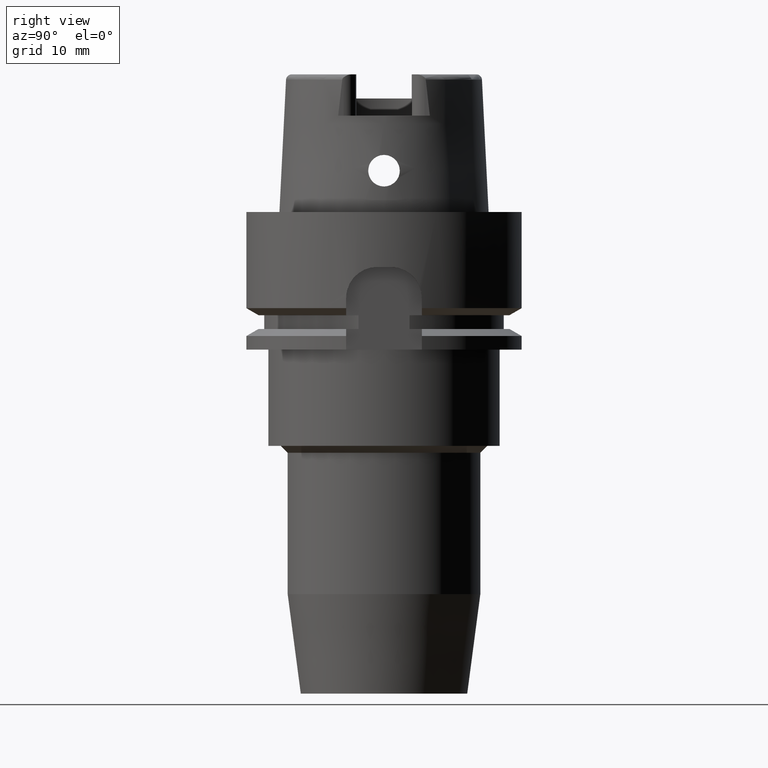
[diagram: clean part render]
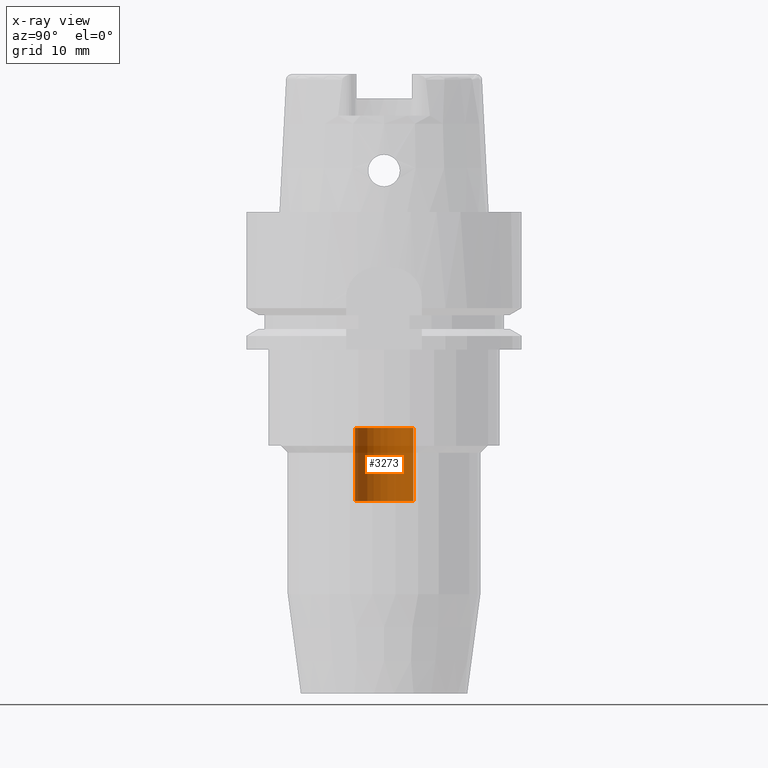
[diagram: x-ray — body ghosted, one internal face saturated and labeled with its STEP entity id]
A machine part, right view, then the same camera in x-ray: the body is ghosted and one INTERNAL B-rep face — a face not visible from any outside direction — is saturated and labeled: STEP entity #3273.
In plain terms, the highlighted cylindrical surface (edge-blend (fillet) strip) has radius 4.25 mm, axis along (0, 0, 1).
Its self-contained STEP definition (entity closure, byte-faithful):
#917=CARTESIAN_POINT('',(0.E0,0.E0,-3.14E1));
#918=DIRECTION('',(0.E0,0.E0,1.E0));
#919=DIRECTION('',(0.E0,1.E0,0.E0));
#920=AXIS2_PLACEMENT_3D('',#917,#918,#919);
#941=DIRECTION('',(0.E0,0.E0,1.E0));
#942=VECTOR('',#941,1.06E1);
#943=CARTESIAN_POINT('',(0.E0,4.25E0,-4.2E1));
#944=LINE('',#943,#942);
#948=DIRECTION('',(0.E0,0.E0,1.E0));
#949=VECTOR('',#948,1.06E1);
#950=CARTESIAN_POINT('',(0.E0,-4.25E0,-4.2E1));
#951=LINE('',#950,#949);
#955=CARTESIAN_POINT('',(0.E0,0.E0,-4.2E1));
#956=DIRECTION('',(0.E0,0.E0,-1.E0));
#957=DIRECTION('',(0.E0,-1.E0,0.E0));
#958=AXIS2_PLACEMENT_3D('',#955,#956,#957);
#2418=CARTESIAN_POINT('',(0.E0,-4.25E0,-3.14E1));
#2419=CARTESIAN_POINT('',(0.E0,4.25E0,-3.14E1));
#2420=VERTEX_POINT('',#2418);
#2421=VERTEX_POINT('',#2419);
#2422=CARTESIAN_POINT('',(0.E0,4.25E0,-4.2E1));
#2423=VERTEX_POINT('',#2422);
#2424=CARTESIAN_POINT('',(0.E0,-4.25E0,-4.2E1));
#2425=VERTEX_POINT('',#2424);
#3261=CARTESIAN_POINT('',(0.E0,0.E0,-7.45E1));
#3262=DIRECTION('',(0.E0,0.E0,1.E0));
#3263=DIRECTION('',(0.E0,1.E0,0.E0));
#3264=AXIS2_PLACEMENT_3D('',#3261,#3262,#3263);
#3265=CYLINDRICAL_SURFACE('',#3264,4.25E0);
#3266=ORIENTED_EDGE('',*,*,#3251,.F.);
#3268=ORIENTED_EDGE('',*,*,#3267,.F.);
#3269=ORIENTED_EDGE('',*,*,#3254,.T.);
#3270=ORIENTED_EDGE('',*,*,#3237,.F.);
#3271=EDGE_LOOP('',(#3266,#3268,#3269,#3270));
#3272=FACE_OUTER_BOUND('',#3271,.F.);
#921=CIRCLE('',#920,4.25E0);
#959=CIRCLE('',#958,4.25E0);
#3237=EDGE_CURVE('',#2421,#2420,#921,.T.);
#3251=EDGE_CURVE('',#2423,#2421,#944,.T.);
#3254=EDGE_CURVE('',#2425,#2420,#951,.T.);
#3267=EDGE_CURVE('',#2425,#2423,#959,.T.);
#3273=ADVANCED_FACE('',(#3272),#3265,.F.);